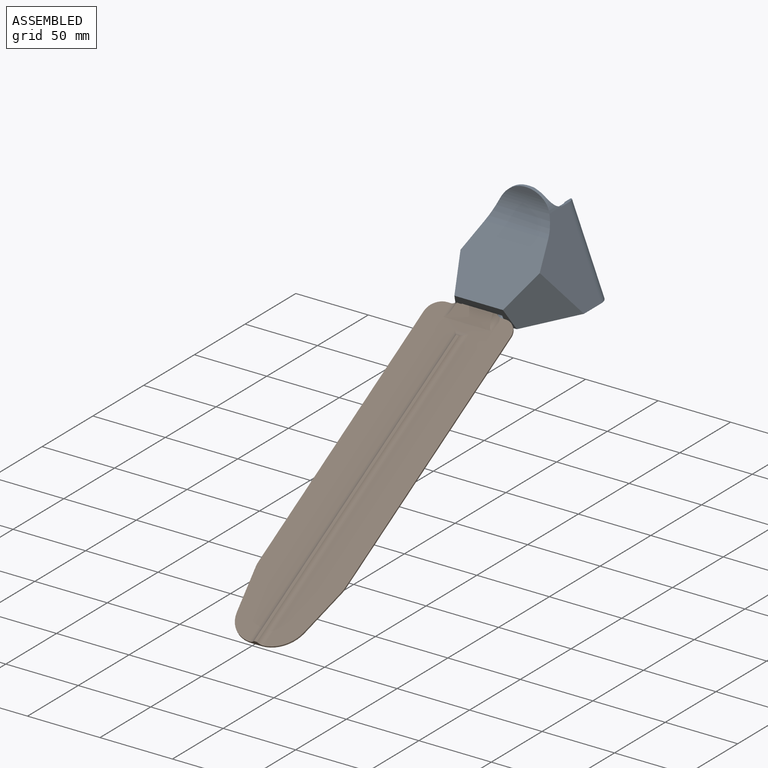
[diagram: assembled view]
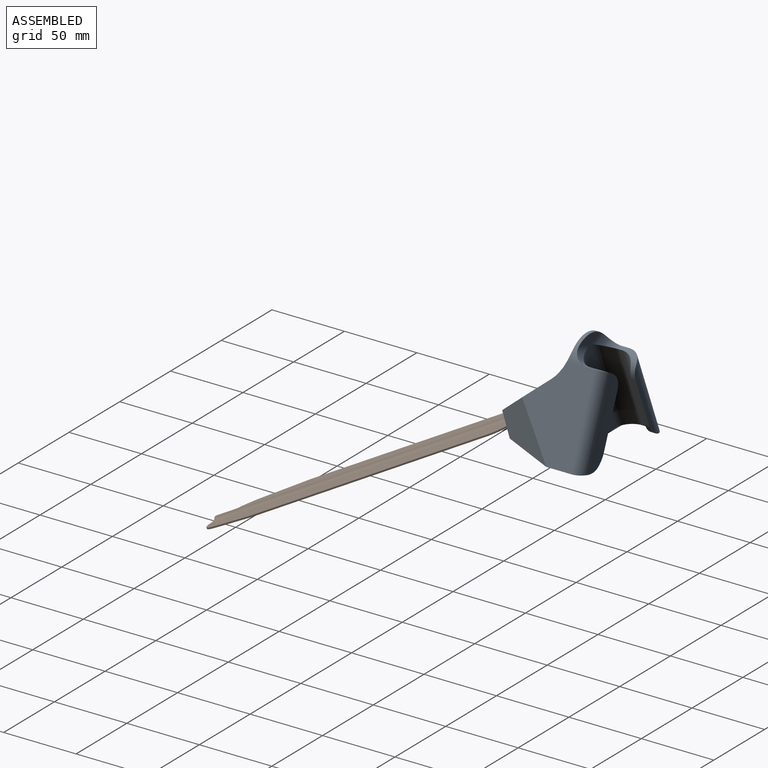
[diagram: assembled view, second angle]
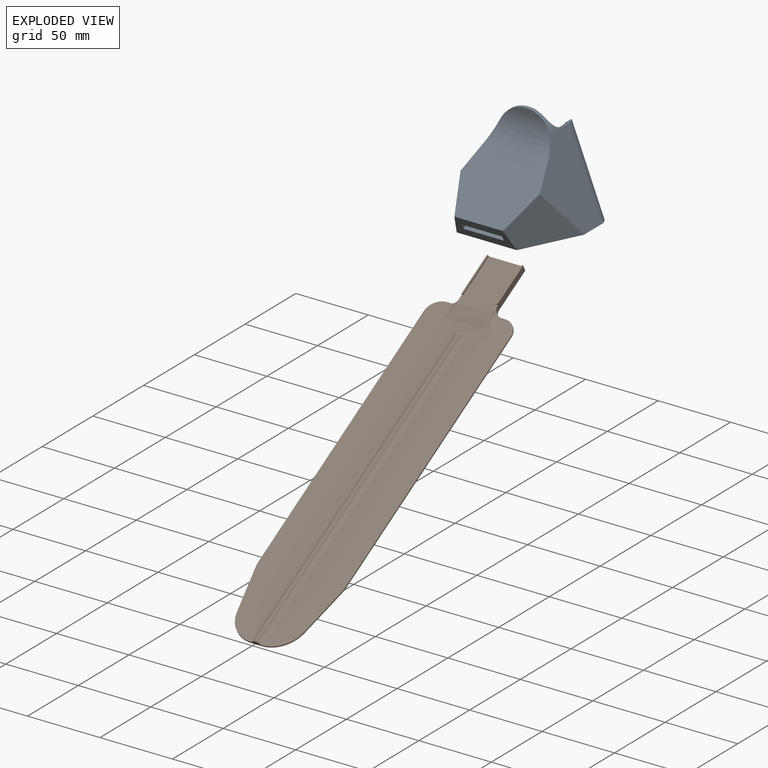
[diagram: exploded view]
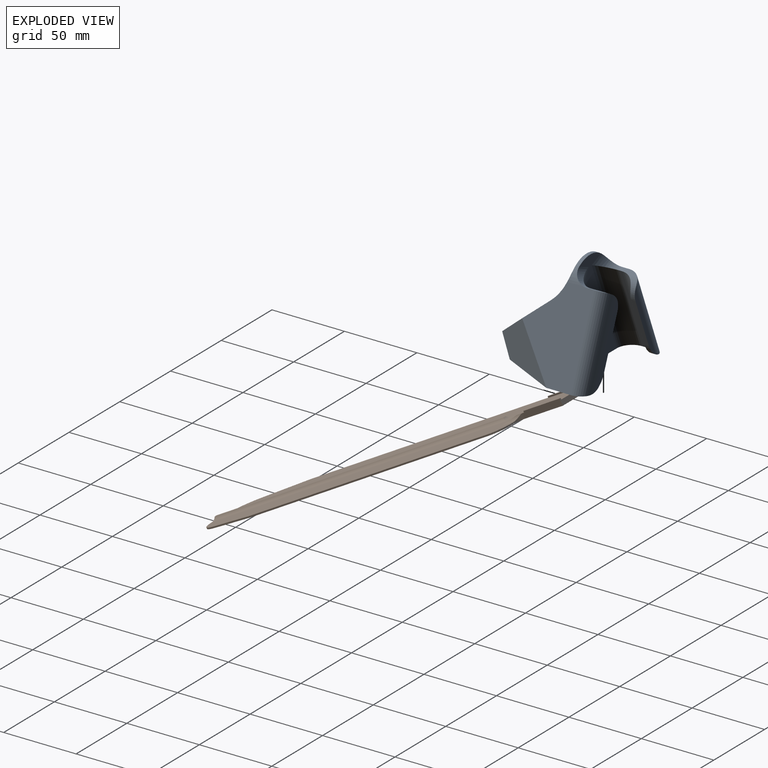
[diagram: exploded view, second angle]
ASSEMBLY  parts=2 mates=2
PART A: 37 faces, bbox 80x74x72.2 mm
  f0: plane 0.25x0.1mm, normal (0,-1,0), area 0mm2, adj f4,f5,f35
  f1: plane 55.71x22.28mm, normal (0.93,0,-0.37), area 120mm2, adj f4,f18,f28,f30
  f2: plane 68.52x52mm, normal (0,1,0), area 1782.1mm2, adj f4,f6,f24,f25,f30,f32
  f3: plane 21.42x3.39mm, normal (0,-1,0), area 49.4mm2, adj f6,f36
  f4: plane 80x63.09mm, normal (0,0,-1), area 2709.5mm2, adj f0,f1,f2,f5,f7,f9,f16,f26
  f5: plane 56.83x42.81mm, normal (0.93,0,0.37), area 1807.9mm2, adj f0,f4,f6,f8,f15,f25,f33,f35
  f6: cylinder r=18.6mm len=34.54mm, axis (0,1,0), area 162.7mm2, adj f2,f3,f5,f7,f24,f25,f36
  f7: plane 56.83x42.87mm, normal (-0.93,0,0.37), area 1812.9mm2, adj f4,f6,f8,f18,f24,f31,f34,f36
  f8: plane 54.61x37.23mm, normal (0,-0.64,0.77), area 2249mm2, adj f5,f7,f9,f34,f35,f36
  f9: plane 41.52x13.97mm, normal (0,-0.87,-0.5), area 492.8mm2, adj f4,f8,f10,f11,f12,f13,f34,f35
  f10: plane 34.64x28mm, normal (0,-0.5,0.87), area 1120mm2, adj f9,f11,f13,f14
  f11: plane 36.64x23.46mm, normal (-1,0,0), area 160mm2, adj f9,f10,f12,f14
  f12: plane 34.64x28mm, normal (0,0.5,-0.87), area 1120mm2, adj f9,f11,f13,f14
  f13: plane 36.64x23.46mm, normal (1,0,0), area 160mm2, adj f9,f10,f12,f14
  f14: plane 28x3.46mm, normal (0,-0.87,-0.5), area 112mm2, adj f10,f11,f12,f13
  f15: plane 12.14x2.79mm, normal (-0.37,0,0.93), area 29.8mm2, adj f5,f16,f23,f25,f33
  f16: plane 55.71x22.28mm, normal (-0.93,0,-0.37), area 120mm2, adj f4,f15,f29,f32
  f17: plane 48.28x20.16mm, normal (0,1,0), area 140.7mm2, adj f20,f23,f27,f33
  f18: plane 12.14x2.79mm, normal (0.37,0,0.93), area 29.8mm2, adj f1,f7,f22,f24,f31
  f19: plane 48.28x20.16mm, normal (0,1,0), area 140.7mm2, adj f21,f22,f26,f31
  f20: plane 33.29x13.32mm, normal (-0.93,0,-0.37), area 107.6mm2, adj f17,f23,f27,f29
  f21: plane 33.29x13.32mm, normal (0.93,0,-0.37), area 107.6mm2, adj f19,f22,f26,f28
  f22: cylinder r=10mm len=13mm, axis (0,1,0), area 63.4mm2, adj f18,f19,f21,f28,f31
  f23: cylinder r=10mm len=13mm, axis (0,-1,0), area 63.4mm2, adj f15,f17,f20,f29,f33
  f24: cylinder r=10mm len=15.78mm, axis (-0.93,0,0.37), area 94.2mm2, adj f2,f6,f7,f18,f30
  f25: cylinder r=10mm len=15.78mm, axis (-0.93,0,-0.37), area 94.2mm2, adj f2,f5,f6,f15,f32
  f26: cylinder r=15mm len=14.54mm, axis (0,-1,0), area 73.6mm2, adj f4,f19,f21,f28,f31
  f27: cylinder r=15mm len=14.54mm, axis (0,-1,0), area 73.6mm2, adj f4,f17,f20,f29,f33
  f28: cylinder r=10mm len=59.42mm, axis (0.37,0,0.93), area 877.9mm2, adj f1,f21,f22,f26
  f29: cylinder r=10mm len=59.42mm, axis (-0.37,0,0.93), area 877.9mm2, adj f16,f20,f23,f27
  f30: cylinder r=10mm len=68.71mm, axis (0.37,0,0.93), area 976.7mm2, adj f1,f2,f4,f24
  f31: cylinder r=10mm len=60.54mm, axis (0.37,0,0.93), area 927.5mm2, adj f4,f7,f18,f19,f22,f26
  f32: cylinder r=10mm len=68.71mm, axis (0.37,0,-0.93), area 976.7mm2, adj f2,f4,f16,f25
  f33: cylinder r=10mm len=60.54mm, axis (0.37,0,-0.93), area 927.5mm2, adj f4,f5,f15,f17,f23,f27
  f34: plane 46.52x31.71mm, normal (-0.89,-0.45,0), area 926.8mm2, adj f4,f7,f8,f9
  f35: plane 46.52x31.76mm, normal (0.9,-0.45,0), area 931.3mm2, adj f0,f4,f5,f8,f9
  f36: cylinder r=26mm len=43.83mm, axis (1,0,0), area 810.1mm2, adj f3,f5,f6,f7,f8
PART B: 34 faces, bbox 60x285x4.5 mm
  f0: plane 250x60mm, normal (0,0,1), area 11673.8mm2, adj f2,f3,f4,f5,f11,f12,f13,f14
  f1: plane 35x25mm, normal (0,0,1), area 817.2mm2, adj f8,f9,f10,f11,f16,f17,f18,f19
  f2: plane 2.5x1mm, normal (0,-1,0), area 2.5mm2, adj f0,f7,f12,f14
  f3: plane 188.02x1mm, normal (-1,0,0), area 188mm2, adj f0,f7,f14,f30
  f4: plane 2.5x1mm, normal (0,-1,0), area 2.5mm2, adj f0,f7,f13,f15
  f5: plane 188.02x1mm, normal (1,0,0), area 188mm2, adj f0,f7,f15,f31
  f6: plane 7.21x3mm, normal (0,1,0), area 15.8mm2, adj f7,f24,f25,f27,f32,f33
  f7: plane 285x60mm, normal (0,0,-1), area 15236.1mm2, adj f2,f3,f4,f5,f6,f8,f9,f10
  f8: plane 30x4.5mm, normal (1,0,0), area 133.9mm2, adj f1,f7,f10,f13,f22,f23
  f9: plane 30x4.5mm, normal (-1,0,0), area 133.9mm2, adj f1,f7,f10,f12,f19,f20
  f10: plane 25x4.5mm, normal (0,-1,0), area 89.5mm2, adj f1,f7,f8,f9,f18,f20,f21,f23
  f11: plane 33.66x10mm, normal (0,0.24,0.97), area 283.7mm2, adj f0,f1,f16,f17
  f12: cylinder r=5mm len=5mm, axis (0,0,1), area 16.2mm2, adj f0,f2,f7,f9,f17
  f13: cylinder r=5mm len=5mm, axis (0,0,-1), area 16.2mm2, adj f0,f4,f7,f8,f16
  f14: cylinder r=10mm len=10mm, axis (0,0,1), area 15.7mm2, adj f0,f2,f3,f7
  f15: cylinder r=10mm len=10mm, axis (0,0,-1), area 15.7mm2, adj f0,f4,f5,f7
  f16: cylinder r=5mm len=15mm, axis (0,-1,0), area 41.9mm2, adj f0,f1,f11,f13
  f17: cylinder r=5mm len=15mm, axis (0,-1,0), area 41.9mm2, adj f0,f1,f11,f12
  f18: plane 28.9x1mm, normal (1,0,0), area 28.9mm2, adj f1,f10,f19,f20
  f19: plane 1x1mm, normal (0,1,0), area 1mm2, adj f1,f9,f18,f20
  f20: plane 28.9x1mm, normal (0,0,1), area 28.9mm2, adj f9,f10,f18,f19
  f21: plane 28.9x1mm, normal (-1,0,0), area 28.9mm2, adj f1,f10,f22,f23
  f22: plane 1x1mm, normal (0,1,0), area 1mm2, adj f1,f8,f21,f23
  f23: plane 28.9x1mm, normal (0,0,1), area 28.9mm2, adj f8,f10,f21,f22
  f24: plane 230x2mm, normal (0,0,1), area 460mm2, adj f6,f25,f26,f27
  f25: cylinder r=5mm len=234mm, axis (0,1,0), area 1074.9mm2, adj f0,f6,f24,f26,f33
  f26: cylinder r=5mm len=10mm, axis (-1,0,0), area 26.4mm2, adj f0,f24,f25,f27
  f27: cylinder r=5mm len=234mm, axis (0,1,0), area 1074.9mm2, adj f0,f6,f24,f26,f32
  f28: plane 31.98x6.4mm, normal (0.98,0.2,0), area 32.6mm2, adj f0,f7,f31,f32
  f29: plane 31.98x6.4mm, normal (-0.98,0.2,0), area 32.6mm2, adj f0,f7,f30,f33
  f30: cylinder r=20mm len=3.92mm, axis (0,0,1), area 3.9mm2, adj f0,f3,f7,f29
  f31: cylinder r=20mm len=3.92mm, axis (0,0,-1), area 3.9mm2, adj f0,f5,f7,f28
  f32: cylinder r=20mm len=19.61mm, axis (0,0,-1), area 27.6mm2, adj f0,f6,f7,f27,f28
  f33: cylinder r=20mm len=19.61mm, axis (0,0,-1), area 27.6mm2, adj f0,f6,f7,f25,f29
PLACE A t=(-37.08,-96.28,25.54)mm
PLACE B rot(axis=(0,0.26,-0.97),180deg) t=(-12.09,-140.23,30.74)mm
MATE planar B.f7 <-> A.f10  axis (0,0.5,-0.87) through (-42.09,-237.8,-25.59)mm
MATE planar B.f4 <-> A.f9  axis (0,0.87,0.5) through (-60.84,-140.48,31.17)mm
